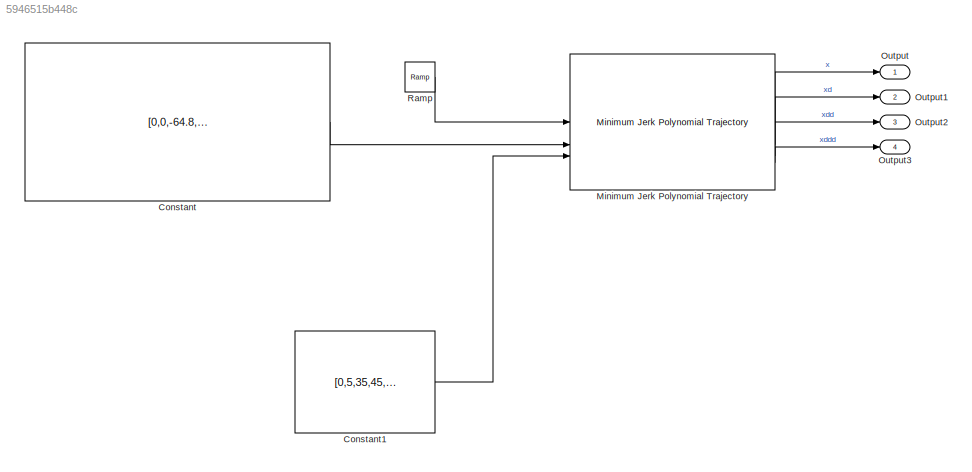
MODEL slx_5946515b448c
KIND model
CONFIG AbsTol = auto
CONFIG EnableMultiTasking = off
CONFIG FixedStep = auto
CONFIG MaxStep = auto
CONFIG MinStep = auto
CONFIG RelTol = 1e-3
CONFIG SampleTimeConstraint = Unconstrained
CONFIG SolverName = VariableStepAuto
CONFIG StartTime = 0.0
CONFIG StopTime = 60.0
BLOCK [Constant] Constant
  Value = [0,0,-64.8,-64.8,-60.2,-60.2,-48.2;0,0,0,10.8,10.8,3,3;0,1.5,1.5,3,4.75,6,6]
  VectorParams1D = off
BLOCK [Constant] Constant1
  Value = [0,5,35,45,55,65,80]
  VectorParams1D = off
BLOCK [Reference] Minimum Jerk Polynomial Trajectory  REF=shareduavrstlib/Minimum Jerk Polynomial Trajectory
  LibrarySourceBlock = uavalgslib/Minimum Jerk Polynomial Trajectory
  SourceBlock = shareduavrstlib/Minimum Jerk Polynomial Trajectory
  SourceType = shared_uav_rst.sluav.internal.system.MinJerkPolyTraj
BLOCK [Outport] Output
  IconDisplay = Signal name
BLOCK [Outport] Output1
  IconDisplay = Signal name
  Port = 2
BLOCK [Outport] Output2
  IconDisplay = Signal name
  Port = 3
BLOCK [Outport] Output3
  IconDisplay = Signal name
  Port = 4
BLOCK [Reference] Ramp  REF=simulink/Sources/Ramp
  SourceBlock = simulink/Sources/Ramp
  SourceType = Ramp
LINE Constant1:1 -> Minimum Jerk Polynomial Trajectory:3
LINE Constant:1 -> Minimum Jerk Polynomial Trajectory:2
LINE Minimum Jerk Polynomial Trajectory:1 -> Output:1
LINE Minimum Jerk Polynomial Trajectory:2 -> Output1:1
LINE Minimum Jerk Polynomial Trajectory:3 -> Output2:1
LINE Minimum Jerk Polynomial Trajectory:4 -> Output3:1
LINE Ramp:1 -> Minimum Jerk Polynomial Trajectory:1
